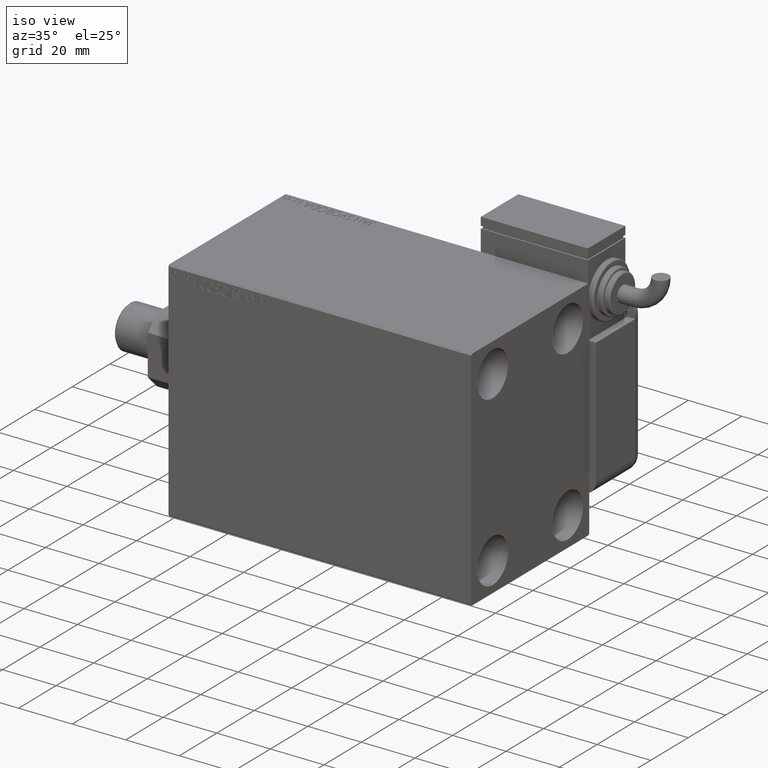
[diagram: clean part render]
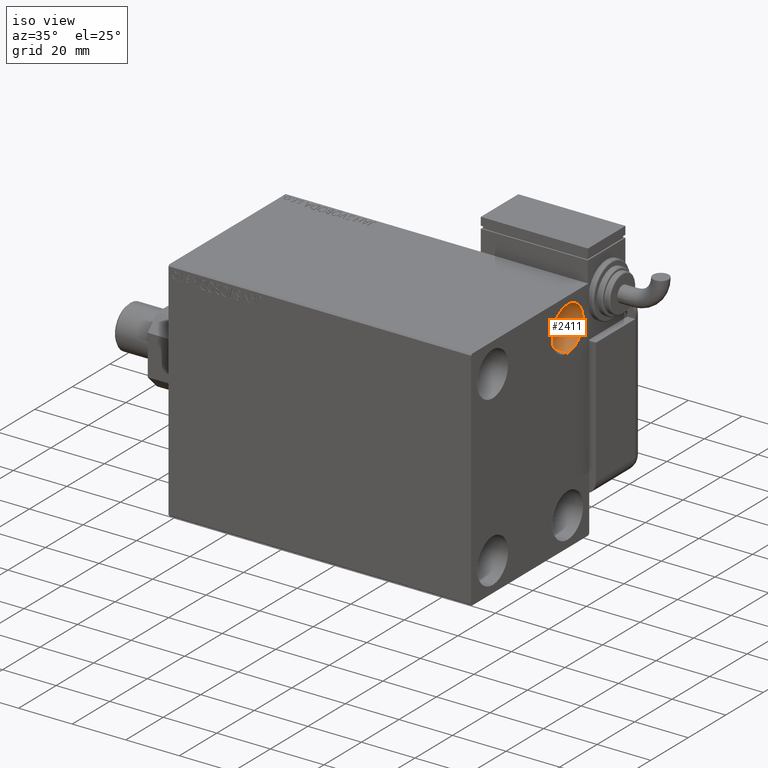
[diagram: same view with one face highlighted and labeled with its STEP entity id]
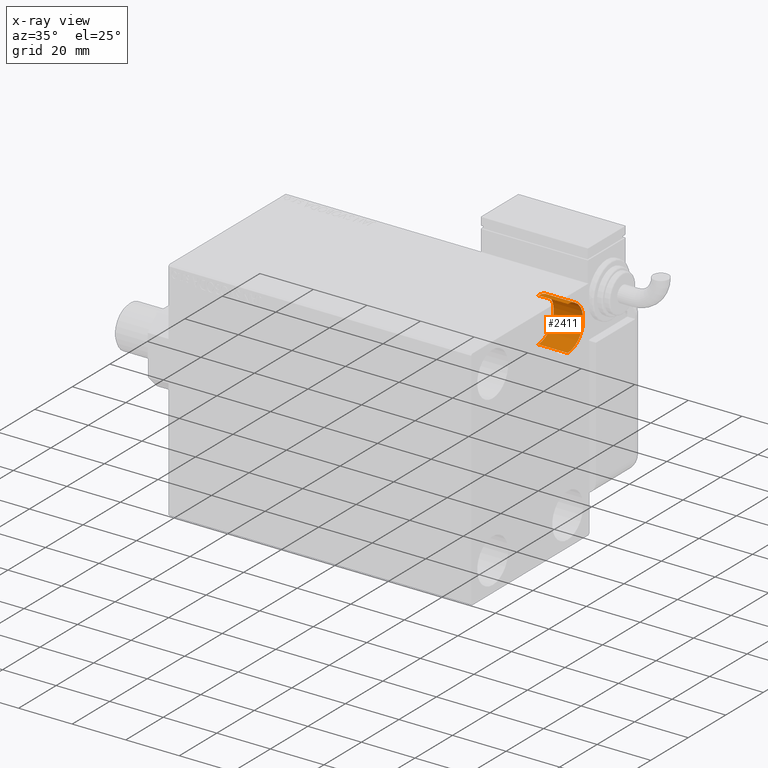
[diagram: x-ray of the same camera — body ghosted, the highlighted face saturated]
A machine part, iso view. The second image highlights one B-rep face of the part: STEP entity #2411.
The next image is the same camera in x-ray: the body ghosted, the highlighted face saturated — about 0% of this face is hidden behind the body in this view.
In plain terms, the highlighted cylindrical surface (edge-blend (fillet) strip) has radius 8.25 mm, axis along (1, 0, 0).
Its self-contained STEP definition (entity closure, byte-faithful):
#121 = CARTESIAN_POINT ( 'NONE',  ( 102.0000000000000142, 20.00000000000000355, 31.50000000000000000 ) ) ;
#546 = EDGE_CURVE ( 'NONE', #42571, #4754, #59781, .T. ) ;
#656 = DIRECTION ( 'NONE',  ( -1.000000000000000000, -0.000000000000000000, -0.000000000000000000 ) ) ;
#2411 = ADVANCED_FACE ( 'NONE', ( #23294 ), #56162, .F. ) ;
#4584 = ORIENTED_EDGE ( 'NONE', *, *, #25247, .F. ) ;
#4611 = VECTOR ( 'NONE', #30029, 1000.000000000000000 ) ;
#4754 = VERTEX_POINT ( 'NONE', #19845 ) ;
#5245 = CARTESIAN_POINT ( 'NONE',  ( 102.0000000000000142, 20.00000000000000355, 31.50000000000000000 ) ) ;
#11164 = LINE ( 'NONE', #20611, #4611 ) ;
#12137 = CARTESIAN_POINT ( 'NONE',  ( 113.0000000000000000, 20.00000000000000355, 23.25000000000000355 ) ) ;
#14086 = DIRECTION ( 'NONE',  ( 0.000000000000000000, 0.000000000000000000, 1.000000000000000000 ) ) ;
#15732 = VECTOR ( 'NONE', #22352, 1000.000000000000000 ) ;
#16514 = CIRCLE ( 'NONE', #32108, 8.249999999999992895 ) ;
#19845 = CARTESIAN_POINT ( 'NONE',  ( 113.0000000000000000, 20.00000000000000355, 39.74999999999999289 ) ) ;
#20611 = CARTESIAN_POINT ( 'NONE',  ( 102.0000000000000142, 20.00000000000000355, 23.25000000000000355 ) ) ;
#21438 = EDGE_CURVE ( 'NONE', #43916, #51582, #11164, .T. ) ;
#22352 = DIRECTION ( 'NONE',  ( 1.000000000000000000, -0.000000000000000000, -0.000000000000000000 ) ) ;
#23294 = FACE_OUTER_BOUND ( 'NONE', #48738, .T. ) ;
#25247 = EDGE_CURVE ( 'NONE', #4754, #51582, #16514, .T. ) ;
#25632 = CARTESIAN_POINT ( 'NONE',  ( 102.0000000000000142, 20.00000000000000355, 23.25000000000000355 ) ) ;
#26853 = CARTESIAN_POINT ( 'NONE',  ( 113.0000000000000000, 20.00000000000000355, 31.50000000000000000 ) ) ;
#28483 = ORIENTED_EDGE ( 'NONE', *, *, #546, .F. ) ;
#28589 = ORIENTED_EDGE ( 'NONE', *, *, #21438, .T. ) ;
#30029 = DIRECTION ( 'NONE',  ( 1.000000000000000000, -0.000000000000000000, -0.000000000000000000 ) ) ;
#32108 = AXIS2_PLACEMENT_3D ( 'NONE', #26853, #49978, #45728 ) ;
#33325 = DIRECTION ( 'NONE',  ( 0.000000000000000000, 0.000000000000000000, -1.000000000000000000 ) ) ;
#33531 = CARTESIAN_POINT ( 'NONE',  ( 102.0000000000000142, 20.00000000000000355, 39.74999999999999289 ) ) ;
#38047 = AXIS2_PLACEMENT_3D ( 'NONE', #121, #42173, #33325 ) ;
#42173 = DIRECTION ( 'NONE',  ( 1.000000000000000000, -0.000000000000000000, -0.000000000000000000 ) ) ;
#42571 = VERTEX_POINT ( 'NONE', #33531 ) ;
#43916 = VERTEX_POINT ( 'NONE', #25632 ) ;
#45728 = DIRECTION ( 'NONE',  ( 0.000000000000000000, 0.000000000000000000, 1.000000000000000000 ) ) ;
#46293 = AXIS2_PLACEMENT_3D ( 'NONE', #5245, #656, #14086 ) ;
#48738 = EDGE_LOOP ( 'NONE', ( #28483, #52416, #28589, #4584 ) ) ;
#49978 = DIRECTION ( 'NONE',  ( -1.000000000000000000, -0.000000000000000000, -0.000000000000000000 ) ) ;
#51582 = VERTEX_POINT ( 'NONE', #12137 ) ;
#52416 = ORIENTED_EDGE ( 'NONE', *, *, #58616, .T. ) ;
#54035 = CIRCLE ( 'NONE', #46293, 8.249999999999992895 ) ;
#56162 = CYLINDRICAL_SURFACE ( 'NONE', #38047, 8.249999999999996447 ) ;
#58616 = EDGE_CURVE ( 'NONE', #42571, #43916, #54035, .T. ) ;
#59781 = LINE ( 'NONE', #60079, #15732 ) ;
#60079 = CARTESIAN_POINT ( 'NONE',  ( 102.0000000000000142, 20.00000000000000355, 39.74999999999999289 ) ) ;